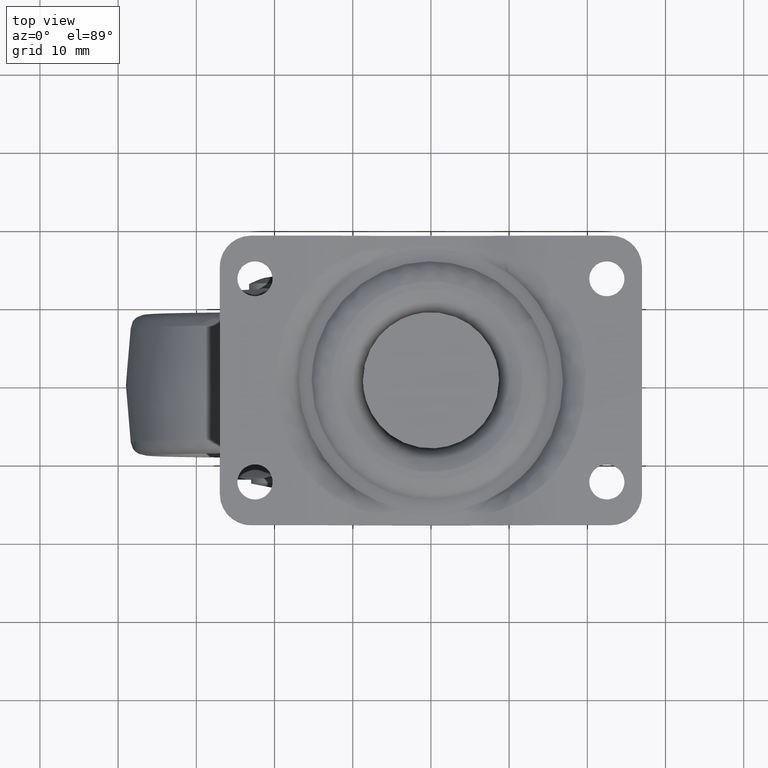
[diagram: clean part render]
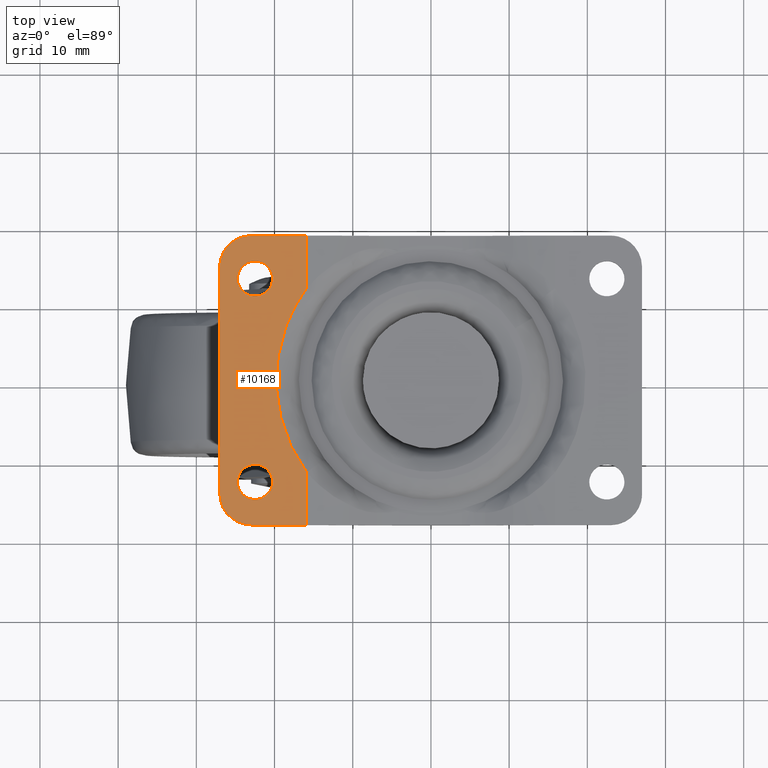
[diagram: same view with one face highlighted and labeled with its STEP entity id]
A machine part, top view. The second image highlights one B-rep face of the part: STEP entity #10168.
In plain terms, the highlighted face is a freeform B-spline surface patch.
Its self-contained STEP definition (entity closure, byte-faithful):
#3452=CARTESIAN_POINT('',(-22.765577028096239,10.765728565695840,-1.064786E-017));
#3453=VERTEX_POINT('',#3452);
#3459=CARTESIAN_POINT('',(-20.250000000000000,13.0,0.0));
#3460=VERTEX_POINT('',#3459);
#3461=CARTESIAN_POINT('',(-22.765577028096242,10.765728565695841,-1.064786E-017));
#3462=CARTESIAN_POINT('',(-22.633254269336582,10.749999999999998,0.0));
#3463=CARTESIAN_POINT('',(-22.500000000000000,10.750000000000000,0.0));
#3464=CARTESIAN_POINT('',(-20.250000000000004,10.750000000000000,0.0));
#3465=CARTESIAN_POINT('',(-20.250000000000000,13.0,0.0));
#3473=(BOUNDED_CURVE()B_SPLINE_CURVE(2,(#3461,#3462,#3463,#3464,#3465),.UNSPECIFIED.,.F.,.U.)B_SPLINE_CURVE_WITH_KNOTS((3,2,3),(0.229562473497713,0.250000000000000,0.500000000000000),.UNSPECIFIED.)CURVE()GEOMETRIC_REPRESENTATION_ITEM()RATIONAL_B_SPLINE_CURVE((0.956026754152739,0.976055948312639,1.0,0.707106781186547,1.0))REPRESENTATION_ITEM(''));
#3474=EDGE_CURVE('',#3453,#3460,#3473,.T.);
#3476=CARTESIAN_POINT('',(-22.362640973583868,15.245803307919459,1.040834E-016));
#3477=VERTEX_POINT('',#3476);
#3478=CARTESIAN_POINT('',(-20.250000000000000,13.0,0.0));
#3479=CARTESIAN_POINT('',(-20.249999999999996,15.116589004692692,0.0));
#3480=CARTESIAN_POINT('',(-22.362640973583865,15.245803307919456,1.040834E-016));
#3488=(BOUNDED_CURVE()B_SPLINE_CURVE(2,(#3478,#3479,#3480),.UNSPECIFIED.,.F.,.U.)B_SPLINE_CURVE_WITH_KNOTS((3,3),(0.500000000000000,0.739332991059238),.UNSPECIFIED.)CURVE()GEOMETRIC_REPRESENTATION_ITEM()RATIONAL_B_SPLINE_CURVE((1.0,0.719603959521634,0.976072103434104))REPRESENTATION_ITEM(''));
#3489=EDGE_CURVE('',#3460,#3477,#3488,.T.);
#3563=CARTESIAN_POINT('',(-24.750000000000000,13.0,0.0));
#3564=VERTEX_POINT('',#3563);
#3565=CARTESIAN_POINT('',(-22.362640973583861,15.245803307919452,1.040834E-016));
#3566=CARTESIAN_POINT('',(-22.431256470641308,15.250000000000005,0.0));
#3567=CARTESIAN_POINT('',(-22.500000000000000,15.250000000000000,0.0));
#3568=CARTESIAN_POINT('',(-24.750000000000000,15.250000000000002,0.0));
#3569=CARTESIAN_POINT('',(-24.750000000000000,13.0,0.0));
#3577=(BOUNDED_CURVE()B_SPLINE_CURVE(2,(#3565,#3566,#3567,#3568,#3569),.UNSPECIFIED.,.F.,.U.)B_SPLINE_CURVE_WITH_KNOTS((3,2,3),(0.739332991059237,0.750000000000000,1.0),.UNSPECIFIED.)CURVE()GEOMETRIC_REPRESENTATION_ITEM()RATIONAL_B_SPLINE_CURVE((0.976072103434103,0.987502821664913,1.0,0.707106781186547,1.0))REPRESENTATION_ITEM(''));
#3578=EDGE_CURVE('',#3477,#3564,#3577,.T.);
#3580=CARTESIAN_POINT('',(-24.750000000000000,13.0,0.0));
#3581=CARTESIAN_POINT('',(-24.750000000000000,11.001607316822948,0.0));
#3582=CARTESIAN_POINT('',(-22.765577028096235,10.765728565695843,-1.064786E-017));
#3590=(BOUNDED_CURVE()B_SPLINE_CURVE(2,(#3580,#3581,#3582),.UNSPECIFIED.,.F.,.U.)B_SPLINE_CURVE_WITH_KNOTS((3,3),(0.0,0.229562473497713),.UNSPECIFIED.)CURVE()GEOMETRIC_REPRESENTATION_ITEM()RATIONAL_B_SPLINE_CURVE((1.0,0.731050832873908,0.956026754152739))REPRESENTATION_ITEM(''));
#3591=EDGE_CURVE('',#3564,#3453,#3590,.T.);
#4010=CARTESIAN_POINT('',(-22.765577028096239,-15.234271434304160,-1.064786E-017));
#4011=VERTEX_POINT('',#4010);
#4017=CARTESIAN_POINT('',(-20.250000000000000,-13.0,0.0));
#4018=VERTEX_POINT('',#4017);
#4019=CARTESIAN_POINT('',(-22.765577028096242,-15.234271434304160,-1.064786E-017));
#4020=CARTESIAN_POINT('',(-22.633254269336582,-15.250000000000000,0.0));
#4021=CARTESIAN_POINT('',(-22.500000000000000,-15.250000000000000,0.0));
#4022=CARTESIAN_POINT('',(-20.250000000000004,-15.250000000000002,0.0));
#4023=CARTESIAN_POINT('',(-20.250000000000000,-13.0,0.0));
#4031=(BOUNDED_CURVE()B_SPLINE_CURVE(2,(#4019,#4020,#4021,#4022,#4023),.UNSPECIFIED.,.F.,.U.)B_SPLINE_CURVE_WITH_KNOTS((3,2,3),(0.229562473497713,0.250000000000000,0.500000000000000),.UNSPECIFIED.)CURVE()GEOMETRIC_REPRESENTATION_ITEM()RATIONAL_B_SPLINE_CURVE((0.956026754152739,0.976055948312639,1.0,0.707106781186547,1.0))REPRESENTATION_ITEM(''));
#4032=EDGE_CURVE('',#4011,#4018,#4031,.T.);
#4034=CARTESIAN_POINT('',(-22.362640973583868,-10.754196692080541,-1.040834E-017));
#4035=VERTEX_POINT('',#4034);
#4036=CARTESIAN_POINT('',(-20.250000000000000,-13.0,0.0));
#4037=CARTESIAN_POINT('',(-20.249999999999996,-10.883410995307306,0.0));
#4038=CARTESIAN_POINT('',(-22.362640973583865,-10.754196692080546,-1.040834E-017));
#4046=(BOUNDED_CURVE()B_SPLINE_CURVE(2,(#4036,#4037,#4038),.UNSPECIFIED.,.F.,.U.)B_SPLINE_CURVE_WITH_KNOTS((3,3),(0.500000000000000,0.739332991059238),.UNSPECIFIED.)CURVE()GEOMETRIC_REPRESENTATION_ITEM()RATIONAL_B_SPLINE_CURVE((1.0,0.719603959521634,0.976072103434104))REPRESENTATION_ITEM(''));
#4047=EDGE_CURVE('',#4018,#4035,#4046,.T.);
#4121=CARTESIAN_POINT('',(-24.750000000000000,-13.0,0.0));
#4122=VERTEX_POINT('',#4121);
#4123=CARTESIAN_POINT('',(-22.362640973583861,-10.754196692080539,-1.040834E-017));
#4124=CARTESIAN_POINT('',(-22.431256470641308,-10.750000000000000,0.0));
#4125=CARTESIAN_POINT('',(-22.500000000000000,-10.750000000000000,0.0));
#4126=CARTESIAN_POINT('',(-24.750000000000000,-10.750000000000000,0.0));
#4127=CARTESIAN_POINT('',(-24.750000000000000,-13.0,0.0));
#4135=(BOUNDED_CURVE()B_SPLINE_CURVE(2,(#4123,#4124,#4125,#4126,#4127),.UNSPECIFIED.,.F.,.U.)B_SPLINE_CURVE_WITH_KNOTS((3,2,3),(0.739332991059237,0.750000000000000,1.0),.UNSPECIFIED.)CURVE()GEOMETRIC_REPRESENTATION_ITEM()RATIONAL_B_SPLINE_CURVE((0.976072103434103,0.987502821664913,1.0,0.707106781186547,1.0))REPRESENTATION_ITEM(''));
#4136=EDGE_CURVE('',#4035,#4122,#4135,.T.);
#4138=CARTESIAN_POINT('',(-24.750000000000000,-13.0,0.0));
#4139=CARTESIAN_POINT('',(-24.750000000000000,-14.998392683177059,0.0));
#4140=CARTESIAN_POINT('',(-22.765577028096235,-15.234271434304164,-1.064786E-017));
#4148=(BOUNDED_CURVE()B_SPLINE_CURVE(2,(#4138,#4139,#4140),.UNSPECIFIED.,.F.,.U.)B_SPLINE_CURVE_WITH_KNOTS((3,3),(0.0,0.229562473497713),.UNSPECIFIED.)CURVE()GEOMETRIC_REPRESENTATION_ITEM()RATIONAL_B_SPLINE_CURVE((1.0,0.731050832873908,0.956026754152739))REPRESENTATION_ITEM(''));
#4149=EDGE_CURVE('',#4122,#4011,#4148,.T.);
#7480=CARTESIAN_POINT('',(-15.891814243022949,-11.781915231721200,0.0));
#7481=VERTEX_POINT('',#7480);
#7614=CARTESIAN_POINT('',(-15.891814243022949,11.781915231721220,0.0));
#7615=VERTEX_POINT('',#7614);
#7629=CARTESIAN_POINT('',(-15.891814243022941,-11.781915231721211,0.0));
#7630=CARTESIAN_POINT('',(-24.626721686860456,3.469447E-015,0.0));
#7631=CARTESIAN_POINT('',(-15.891814243022941,11.781915231721211,0.0));
#7639=(BOUNDED_CURVE()B_SPLINE_CURVE(2,(#7629,#7630,#7631),.UNSPECIFIED.,.F.,.U.)CURVE()GEOMETRIC_REPRESENTATION_ITEM()QUASI_UNIFORM_CURVE()RATIONAL_B_SPLINE_CURVE((1.0,0.803310491145264,1.0))REPRESENTATION_ITEM(''));
#7640=EDGE_CURVE('',#7481,#7615,#7639,.T.);
#9419=CARTESIAN_POINT('',(-15.891814243022949,-18.500000000000000,0.0));
#9420=VERTEX_POINT('',#9419);
#9434=CARTESIAN_POINT('',(-23.0,-18.500000000000000,0.0));
#9435=VERTEX_POINT('',#9434);
#9436=CARTESIAN_POINT('',(-23.0,-18.500000000000000,0.0));
#9437=CARTESIAN_POINT('',(-15.891814243022949,-18.500000000000000,0.0));
#9438=QUASI_UNIFORM_CURVE('',1,(#9436,#9437),.UNSPECIFIED.,.F.,.U.);
#9439=EDGE_CURVE('',#9435,#9420,#9438,.T.);
#9455=CARTESIAN_POINT('',(-23.0,18.500000000000000,0.0));
#9456=VERTEX_POINT('',#9455);
#9462=CARTESIAN_POINT('',(-15.891814243022949,18.500000000000000,0.0));
#9463=VERTEX_POINT('',#9462);
#9464=CARTESIAN_POINT('',(-15.891814243022949,18.500000000000000,0.0));
#9465=CARTESIAN_POINT('',(-23.0,18.500000000000000,0.0));
#9466=QUASI_UNIFORM_CURVE('',1,(#9464,#9465),.UNSPECIFIED.,.F.,.U.);
#9467=EDGE_CURVE('',#9463,#9456,#9466,.T.);
#9682=CARTESIAN_POINT('',(-27.0,14.500000000000000,0.0));
#9683=VERTEX_POINT('',#9682);
#9689=CARTESIAN_POINT('',(-23.0,18.500000000000000,0.0));
#9690=CARTESIAN_POINT('',(-27.000000000000011,18.500000000000000,0.0));
#9691=CARTESIAN_POINT('',(-27.0,14.500000000000000,0.0));
#9699=(BOUNDED_CURVE()B_SPLINE_CURVE(2,(#9689,#9690,#9691),.UNSPECIFIED.,.F.,.U.)CURVE()GEOMETRIC_REPRESENTATION_ITEM()QUASI_UNIFORM_CURVE()RATIONAL_B_SPLINE_CURVE((1.0,0.707106781186548,1.0))REPRESENTATION_ITEM(''));
#9700=EDGE_CURVE('',#9456,#9683,#9699,.T.);
#9712=CARTESIAN_POINT('',(-27.0,-14.500000000000000,0.0));
#9713=VERTEX_POINT('',#9712);
#9719=CARTESIAN_POINT('',(-27.0,14.500000000000000,0.0));
#9720=CARTESIAN_POINT('',(-27.0,-14.500000000000000,0.0));
#9721=QUASI_UNIFORM_CURVE('',1,(#9719,#9720),.UNSPECIFIED.,.F.,.U.);
#9722=EDGE_CURVE('',#9683,#9713,#9721,.T.);
#9744=CARTESIAN_POINT('',(-27.0,-14.500000000000000,0.0));
#9745=CARTESIAN_POINT('',(-27.000000000000011,-18.500000000000000,0.0));
#9746=CARTESIAN_POINT('',(-23.0,-18.500000000000000,0.0));
#9754=(BOUNDED_CURVE()B_SPLINE_CURVE(2,(#9744,#9745,#9746),.UNSPECIFIED.,.F.,.U.)CURVE()GEOMETRIC_REPRESENTATION_ITEM()QUASI_UNIFORM_CURVE()RATIONAL_B_SPLINE_CURVE((1.0,0.707106781186548,1.0))REPRESENTATION_ITEM(''));
#9755=EDGE_CURVE('',#9713,#9435,#9754,.T.);
#9886=CARTESIAN_POINT('',(-15.891814243022949,-11.781915231721200,0.0));
#9887=CARTESIAN_POINT('',(-15.891814243022949,-18.500000000000000,0.0));
#9888=QUASI_UNIFORM_CURVE('',1,(#9886,#9887),.UNSPECIFIED.,.F.,.U.);
#9889=EDGE_CURVE('',#7481,#9420,#9888,.T.);
#10004=CARTESIAN_POINT('',(-15.891814243022949,18.500000000000000,0.0));
#10005=CARTESIAN_POINT('',(-15.891814243022949,11.781915231721220,0.0));
#10006=QUASI_UNIFORM_CURVE('',1,(#10004,#10005),.UNSPECIFIED.,.F.,.U.);
#10007=EDGE_CURVE('',#9463,#7615,#10006,.T.);
#10141=CARTESIAN_POINT('',(-27.554853857031180,20.348149928286830,0.0));
#10142=CARTESIAN_POINT('',(-15.336960088047009,20.348149928286830,0.0));
#10143=CARTESIAN_POINT('',(-27.554853857031180,-20.348150920704160,0.0));
#10144=CARTESIAN_POINT('',(-15.336960088047009,-20.348150920704160,0.0));
#10145=B_SPLINE_SURFACE_WITH_KNOTS('',1,1,((#10141,#10143),(#10142,#10144)),.UNSPECIFIED.,.F.,.F.,.U.,(2,2),(2,2),(0.0,12.217893768984180),(0.0,40.696300848990987),.UNSPECIFIED.);
#10146=ORIENTED_EDGE('',*,*,#9889,.F.);
#10147=ORIENTED_EDGE('',*,*,#7640,.T.);
#10148=ORIENTED_EDGE('',*,*,#10007,.F.);
#10149=ORIENTED_EDGE('',*,*,#9467,.T.);
#10150=ORIENTED_EDGE('',*,*,#9700,.T.);
#10151=ORIENTED_EDGE('',*,*,#9722,.T.);
#10152=ORIENTED_EDGE('',*,*,#9755,.T.);
#10153=ORIENTED_EDGE('',*,*,#9439,.T.);
#10154=EDGE_LOOP('',(#10146,#10147,#10148,#10149,#10150,#10151,#10152,#10153));
#10155=FACE_OUTER_BOUND('',#10154,.T.);
#10156=ORIENTED_EDGE('',*,*,#4047,.F.);
#10157=ORIENTED_EDGE('',*,*,#4032,.F.);
#10158=ORIENTED_EDGE('',*,*,#4149,.F.);
#10159=ORIENTED_EDGE('',*,*,#4136,.F.);
#10160=EDGE_LOOP('',(#10156,#10157,#10158,#10159));
#10161=FACE_BOUND('',#10160,.T.);
#10162=ORIENTED_EDGE('',*,*,#3489,.F.);
#10163=ORIENTED_EDGE('',*,*,#3474,.F.);
#10164=ORIENTED_EDGE('',*,*,#3591,.F.);
#10165=ORIENTED_EDGE('',*,*,#3578,.F.);
#10166=EDGE_LOOP('',(#10162,#10163,#10164,#10165));
#10167=FACE_BOUND('',#10166,.T.);
#10168=ADVANCED_FACE('',(#10155,#10161,#10167),#10145,.F.);